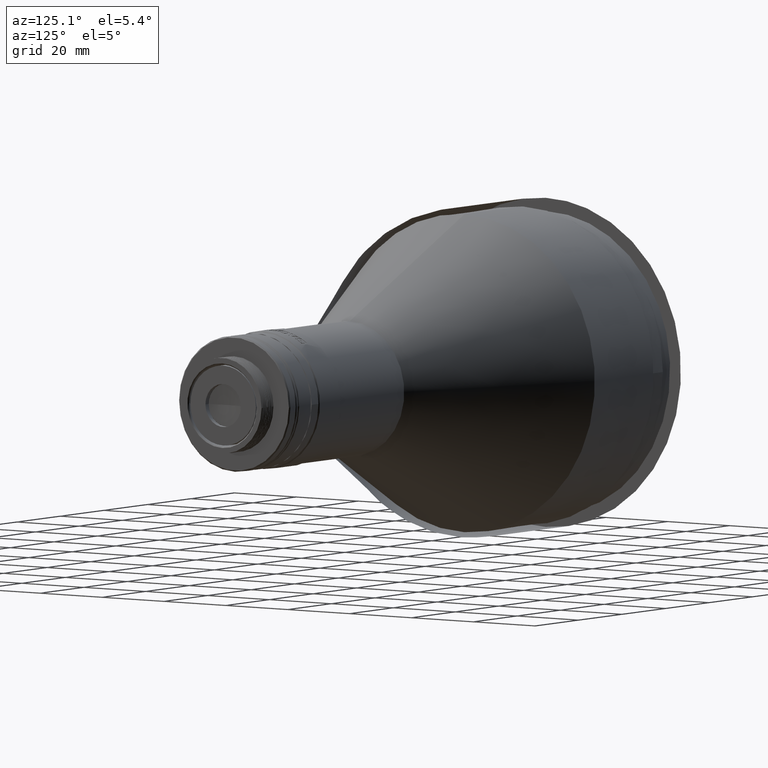
[diagram: clean part render]
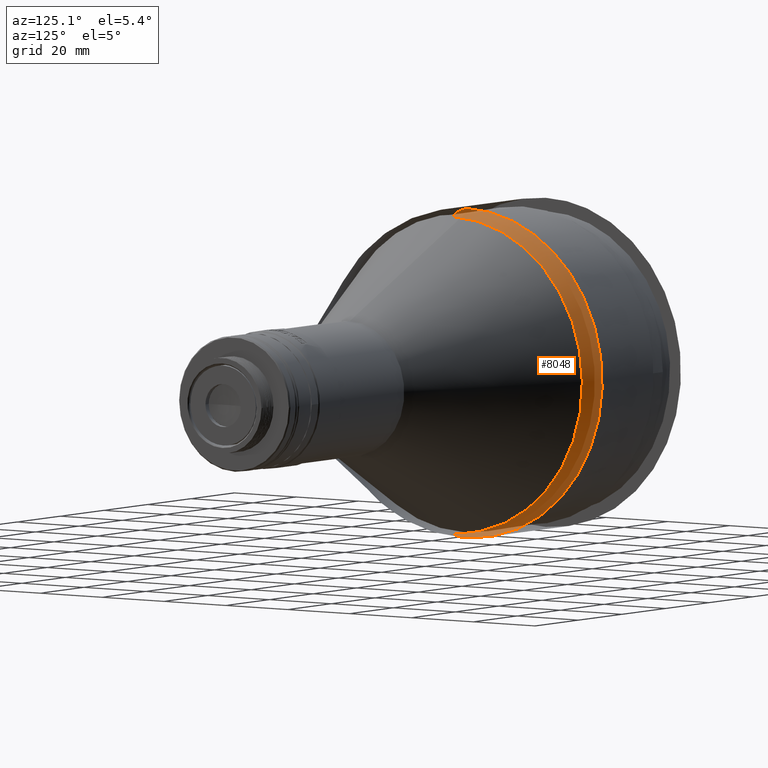
[diagram: same view with one face highlighted and labeled with its STEP entity id]
A machine part, auxiliary view. The second image highlights one B-rep face of the part: STEP entity #8048.
In plain terms, the highlighted toroidal blend (fillet) surface has major radius 28.7 mm and minor (blend) radius 15 mm.
Its self-contained STEP definition (entity closure, byte-faithful):
#12 = VERTEX_POINT ( 'NONE', #13295 ) ;
#224 = CARTESIAN_POINT ( 'NONE',  ( 18.97945200263147214, 25.66220231175445221, -130.6613263225026742 ) ) ;
#310 = CARTESIAN_POINT ( 'NONE',  ( 18.97945200263146504, 10.90798865403301043, -123.3870630619717161 ) ) ;
#394 = CARTESIAN_POINT ( 'NONE',  ( 18.97945200263146504, 41.79870194474690237, -169.6182825857016212 ) ) ;
#1105 = CARTESIAN_POINT ( 'NONE',  ( 12.17900414224190087, 26.65655390545339998, -129.3652119527655486 ) ) ;
#1196 = CARTESIAN_POINT ( 'NONE',  ( 12.17900414224190087, 28.87812900031182295, -131.1884115153490313 ) ) ;
#1376 = CARTESIAN_POINT ( 'NONE',  ( 12.17900414224189909, 41.46807077047943579, -178.1922394609952391 ) ) ;
#1423 = CARTESIAN_POINT ( 'NONE',  ( 12.17900414224189909, 2.018342305411405117E-14, -207.8114151905285212 ) ) ;
#1584 = CARTESIAN_POINT ( 'NONE',  ( 18.97945200263146859, 13.55557670450494889, -124.1902001166408098 ) ) ;
#1680 = CARTESIAN_POINT ( 'NONE',  ( 18.97945200263146148, 21.08335280320911309, -200.6209934865545108 ) ) ;
#1681 = FACE_OUTER_BOUND ( 'NONE', #6732, .T. ) ;
#1716 = EDGE_CURVE ( 'NONE', #10634, #3049, #8691, .T. ) ;
#1763 = CARTESIAN_POINT ( 'NONE',  ( 18.97945200263147214, 18.64332168135331003, -126.2976130879470134 ) ) ;
#1943 = CARTESIAN_POINT ( 'NONE',  ( 18.97945200263147214, 27.80090747736658230, -132.4165162917562952 ) ) ;
#2015 = CARTESIAN_POINT ( 'NONE',  ( 12.17900414224139993, 2.118348684342979799E-14, -120.4114151906715904 ) ) ;
#2122 = CARTESIAN_POINT ( 'NONE',  ( 12.17900414224190264, 5.720245900347808110, -207.5297211501696495 ) ) ;
#2212 = CARTESIAN_POINT ( 'NONE',  ( 12.17900414224190087, 19.36570771823706494, -203.3904155614222589 ) ) ;
#2478 = CARTESIAN_POINT ( 'NONE',  ( 12.17900414224190087, 37.92424087724175052, -186.0116996509486853 ) ) ;
#2567 = CARTESIAN_POINT ( 'NONE',  ( 12.17900414224190264, 39.27900037082228835, -183.4771229088370603 ) ) ;
#3041 = CARTESIAN_POINT ( 'NONE',  ( 18.97945200263147214, 21.08335280320920191, -127.6018368946455155 ) ) ;
#3049 = VERTEX_POINT ( 'NONE', #2015 ) ;
#3137 = CARTESIAN_POINT ( 'NONE',  ( 18.97945200263146859, 10.90798865403293760, -204.8357673192282959 ) ) ;
#3219 = CARTESIAN_POINT ( 'NONE',  ( 18.97945200263146859, 39.92121507395917490, -150.5558384860950980 ) ) ;
#3397 = DIRECTION ( 'NONE',  ( -1.000000000000000000, -6.358798948743038990E-16, 0.000000000000000000 ) ) ;
#3657 = CARTESIAN_POINT ( 'NONE',  ( 12.17900414224189909, 21.90028446034867571, -202.0356560678417281 ) ) ;
#3755 = CARTESIAN_POINT ( 'NONE',  ( 12.17900414224190087, 11.33064824382270963, -121.8090876431233767 ) ) ;
#4352 = CIRCLE ( 'NONE', #14486, 15.00000000000049738 ) ;
#4392 = CARTESIAN_POINT ( 'NONE',  ( 18.97945200263146859, 42.06988814078012240, -161.3579474505912685 ) ) ;
#4468 = ORIENTED_EDGE ( 'NONE', *, *, #1716, .F. ) ;
#4482 = CARTESIAN_POINT ( 'NONE',  ( 18.97945200263146148, 31.69489889884367173, -191.9123226679666061 ) ) ;
#4581 = CARTESIAN_POINT ( 'NONE',  ( 18.97945200263147569, 31.69489889884372857, -136.3105077132334202 ) ) ;
#4761 = CIRCLE ( 'NONE', #6206, 15.00000000000049916 ) ;
#5107 = CARTESIAN_POINT ( 'NONE',  ( 12.17900414224190087, 37.92424087724170079, -142.2111307302512557 ) ) ;
#5202 = CARTESIAN_POINT ( 'NONE',  ( 12.17900414224139993, 2.118348684342979799E-14, -120.4114151906715904 ) ) ;
#5475 = CARTESIAN_POINT ( 'NONE',  ( 12.17900414224189909, 21.90028446034857978, -126.1871743133581845 ) ) ;
#5847 = CARTESIAN_POINT ( 'NONE',  ( 18.97945200263146148, 40.72435212862823306, -175.0194038446331035 ) ) ;
#5883 = DIRECTION ( 'NONE',  ( 6.358798948743039976E-16, -1.000000000000000000, 1.008064860678022838E-30 ) ) ;
#5932 = CARTESIAN_POINT ( 'NONE',  ( 18.97945200263146504, 39.92121507395913937, -177.6669918951050136 ) ) ;
#6104 = CARTESIAN_POINT ( 'NONE',  ( 12.17900414224190264, 2.860158311699164457, -207.8114151905000426 ) ) ;
#6112 = CARTESIAN_POINT ( 'NONE',  ( 18.97945200263146859, 40.72435212862826148, -153.2034265365670365 ) ) ;
#6206 = AXIS2_PLACEMENT_3D ( 'NONE', #14727, #11729, #3397 ) ;
#6464 = CARTESIAN_POINT ( 'NONE',  ( 12.17900414224190087, 26.65655390545347814, -198.8576184284343640 ) ) ;
#6504 = EDGE_CURVE ( 'NONE', #16063, #12, #11066, .T. ) ;
#6554 = CARTESIAN_POINT ( 'NONE',  ( 12.17900414224189909, 42.30232754747660806, -175.4420634344227778 ) ) ;
#6651 = CARTESIAN_POINT ( 'NONE',  ( 12.17900414224190087, 43.41830595956957239, -158.3911692902521224 ) ) ;
#6732 = EDGE_LOOP ( 'NONE', ( #11227, #4468, #13335, #14842 ) ) ;
#7115 = CARTESIAN_POINT ( 'NONE',  ( 18.97945200263146859, 42.06988814078011529, -166.8648829306088430 ) ) ;
#7296 = CARTESIAN_POINT ( 'NONE',  ( 18.97945200263146504, 25.66220231175437405, -197.5615040586973521 ) ) ;
#7299 = DIRECTION ( 'NONE',  ( 1.000000000000000000, 6.358798948743039976E-16, 1.585307019145949860E-15 ) ) ;
#7732 = CARTESIAN_POINT ( 'NONE',  ( 12.17900414224189909, 2.018342305411405117E-14, -207.8114151905285212 ) ) ;
#7807 = CARTESIAN_POINT ( 'NONE',  ( 18.97945200263105292, 2.619185434200414906E-14, -122.0415270498203881 ) ) ;
#8048 = ADVANCED_FACE ( 'NONE', ( #1681 ), #16104, .F. ) ;
#8096 = CARTESIAN_POINT ( 'NONE',  ( 12.17900414224189909, 39.27900037082223861, -144.7457074723629091 ) ) ;
#8569 = CARTESIAN_POINT ( 'NONE',  ( 18.97945200263147214, 33.45008886809729631, -138.4492128788455716 ) ) ;
#8667 = CARTESIAN_POINT ( 'NONE',  ( 18.97945200263146504, 5.506867395101495255, -205.9101171353468942 ) ) ;
#8691 = B_SPLINE_CURVE_WITH_KNOTS ( 'NONE', 3,
 ( #7732, #6104, #2122, #11813, #17333, #2212, #3657, #6464, #17072, #15711, #17691, #2478, #2567, #1376, #6554, #17511, #10627, #16164, #6651, #12343, #10796, #8096, #5107, #10890, #13625, #1196, #1105, #5475, #14893, #17606, #3755, #15155, #12074, #5202 ),
 .UNSPECIFIED., .F., .F.,
 ( 4, 2, 2, 2, 2, 2, 2, 2, 2, 2, 2, 2, 2, 2, 2, 2, 4 ),
 ( 0.000000000000000000, 0.06249999999999998612, 0.1250000000000000000, 0.1875000000000000000, 0.2500000000000000555, 0.3125000000000000555, 0.3750000000000000000, 0.4375000000000000000, 0.5000000000000000000, 0.5625000000000000000, 0.6250000000000000000, 0.6875000000000000000, 0.7499999999999998890, 0.8124999999999998890, 0.8749999999999998890, 0.9374999999999998890, 1.000000000000000000 ),
 .UNSPECIFIED. ) ;
#8696 = DIRECTION ( 'NONE',  ( 1.000000000000000000, 6.358798948743043921E-16, 0.000000000000000000 ) ) ;
#8743 = CARTESIAN_POINT ( 'NONE',  ( 18.97945200263146148, 33.45008886809723947, -189.7736175023544831 ) ) ;
#10008 = CARTESIAN_POINT ( 'NONE',  ( 18.97945200263146504, 18.64332168135323897, -201.9252172932530414 ) ) ;
#10186 = CARTESIAN_POINT ( 'NONE',  ( 18.97945200263147214, 5.506867395101581408, -122.3127132458531179 ) ) ;
#10627 = CARTESIAN_POINT ( 'NONE',  ( 12.17900414224189909, 43.69999999990000816, -166.9715735022990941 ) ) ;
#10634 = VERTEX_POINT ( 'NONE', #1423 ) ;
#10796 = CARTESIAN_POINT ( 'NONE',  ( 12.17900414224190087, 41.46807077047940737, -150.0305909202046735 ) ) ;
#10890 = CARTESIAN_POINT ( 'NONE',  ( 12.17900414224189554, 34.74620323783437215, -137.4548612851464497 ) ) ;
#11066 = B_SPLINE_CURVE_WITH_KNOTS ( 'NONE', 3,
 ( #15721, #15454, #10186, #310, #1584, #1763, #3041, #224, #1943, #4581, #8569, #12814, #17080, #3219, #6112, #14273, #4392, #7115, #394, #5847, #5932, #16903, #11453, #8743, #4482, #14088, #7296, #1680, #10008, #15546, #3137, #8667, #14185, #16991 ),
 .UNSPECIFIED., .F., .F.,
 ( 4, 2, 2, 2, 2, 2, 2, 2, 2, 2, 2, 2, 2, 2, 2, 2, 4 ),
 ( 0.000000000000000000, 0.06249999999999998612, 0.1250000000000000000, 0.1875000000000000000, 0.2500000000000000555, 0.3125000000000000555, 0.3750000000000000000, 0.4375000000000000000, 0.5000000000000000000, 0.5625000000000000000, 0.6250000000000000000, 0.6875000000000000000, 0.7499999999999998890, 0.8124999999999998890, 0.8749999999999998890, 0.9375000000000000000, 1.000000000000000000 ),
 .UNSPECIFIED. ) ;
#11227 = ORIENTED_EDGE ( 'NONE', *, *, #17150, .F. ) ;
#11453 = CARTESIAN_POINT ( 'NONE',  ( 18.97945200263146504, 36.50957829595446924, -185.1947679938092506 ) ) ;
#11655 = EDGE_CURVE ( 'NONE', #10634, #12, #4352, .T. ) ;
#11729 = DIRECTION ( 'NONE',  ( -6.358798948743038004E-16, 1.000000000000000000, -1.224646799147363314E-16 ) ) ;
#11813 = CARTESIAN_POINT ( 'NONE',  ( 12.17900414224189554, 11.33064824382279667, -206.4137427380765644 ) ) ;
#12074 = CARTESIAN_POINT ( 'NONE',  ( 12.17900414224190442, 2.860158311699078748, -120.4114151907000121 ) ) ;
#12343 = CARTESIAN_POINT ( 'NONE',  ( 12.17900414224189909, 42.30232754747656543, -152.7807669467771348 ) ) ;
#12636 = DIRECTION ( 'NONE',  ( 1.585307019145950057E-15, -1.615488558779782688E-33, -1.000000000000000000 ) ) ;
#12814 = CARTESIAN_POINT ( 'NONE',  ( 18.97945200263147214, 36.50957829595451898, -143.0280623873908326 ) ) ;
#13295 = CARTESIAN_POINT ( 'NONE',  ( 18.97945200263130161, 2.018220086284344943E-14, -206.1813033313800076 ) ) ;
#13335 = ORIENTED_EDGE ( 'NONE', *, *, #11655, .T. ) ;
#13625 = CARTESIAN_POINT ( 'NONE',  ( 12.17900414224190087, 32.92300367525090365, -135.2332861902880552 ) ) ;
#14088 = CARTESIAN_POINT ( 'NONE',  ( 18.97945200263146859, 27.80090747736652190, -195.8063140894437879 ) ) ;
#14185 = CARTESIAN_POINT ( 'NONE',  ( 18.97945200263146504, 2.753467740008646913, -206.1813033313800929 ) ) ;
#14186 = CARTESIAN_POINT ( 'NONE',  ( 12.17900414223989891, 5.107025913275719455E-14, -164.1114151905999847 ) ) ;
#14273 = CARTESIAN_POINT ( 'NONE',  ( 18.97945200263146859, 41.79870194474691658, -158.6045477954984619 ) ) ;
#14309 = CARTESIAN_POINT ( 'NONE',  ( 12.17900414223994332, 5.107025913275719455E-14, -192.8114151905564029 ) ) ;
#14373 = AXIS2_PLACEMENT_3D ( 'NONE', #14186, #7299, #12636 ) ;
#14486 = AXIS2_PLACEMENT_3D ( 'NONE', #14309, #5883, #8696 ) ;
#14727 = CARTESIAN_POINT ( 'NONE',  ( 12.17900414223985450, 5.458499544630476186E-14, -135.4114151906435950 ) ) ;
#14842 = ORIENTED_EDGE ( 'NONE', *, *, #6504, .F. ) ;
#14893 = CARTESIAN_POINT ( 'NONE',  ( 12.17900414224190087, 19.36570771823697967, -124.8324148197776964 ) ) ;
#15155 = CARTESIAN_POINT ( 'NONE',  ( 12.17900414224189909, 5.720245900347713075, -120.6931092310304052 ) ) ;
#15454 = CARTESIAN_POINT ( 'NONE',  ( 18.97945200263147214, 2.753467740008735287, -122.0415270498199050 ) ) ;
#15546 = CARTESIAN_POINT ( 'NONE',  ( 18.97945200263146504, 13.55557670450487251, -204.0326302645591454 ) ) ;
#15711 = CARTESIAN_POINT ( 'NONE',  ( 12.17900414224190087, 32.92300367525097471, -192.9895441909118574 ) ) ;
#15721 = CARTESIAN_POINT ( 'NONE',  ( 18.97945200263105292, 2.619185434200414906E-14, -122.0415270498203881 ) ) ;
#16063 = VERTEX_POINT ( 'NONE', #7807 ) ;
#16104 = TOROIDAL_SURFACE ( 'NONE', #14373, 28.69999999995640039, 15.00000000000049916 ) ;
#16164 = CARTESIAN_POINT ( 'NONE',  ( 12.17900414224189909, 43.69999999989999395, -161.2512568789007616 ) ) ;
#16903 = CARTESIAN_POINT ( 'NONE',  ( 18.97945200263146148, 37.81380210265295716, -182.7547368719533267 ) ) ;
#16991 = CARTESIAN_POINT ( 'NONE',  ( 18.97945200263130161, 2.018220086284344943E-14, -206.1813033313800076 ) ) ;
#17072 = CARTESIAN_POINT ( 'NONE',  ( 12.17900414224189909, 28.87812900031189045, -197.0344188658509665 ) ) ;
#17080 = CARTESIAN_POINT ( 'NONE',  ( 18.97945200263147569, 37.81380210265299979, -145.4680935092467848 ) ) ;
#17150 = EDGE_CURVE ( 'NONE', #3049, #16063, #4761, .T. ) ;
#17333 = CARTESIAN_POINT ( 'NONE',  ( 12.17900414224189554, 14.08082427039526507, -205.5794859610793708 ) ) ;
#17511 = CARTESIAN_POINT ( 'NONE',  ( 12.17900414224189909, 43.41830595956960082, -169.8316610909477902 ) ) ;
#17606 = CARTESIAN_POINT ( 'NONE',  ( 12.17900414224189731, 14.08082427039518869, -122.6433444201205276 ) ) ;
#17691 = CARTESIAN_POINT ( 'NONE',  ( 12.17900414224190087, 34.74620323783444320, -190.7679690960534913 ) ) ;